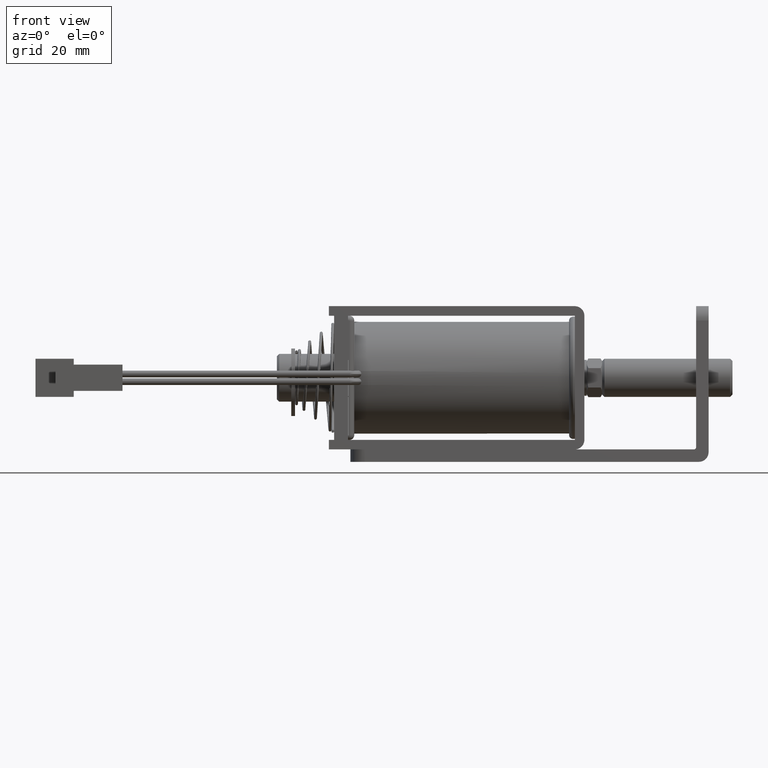
[diagram: clean part render]
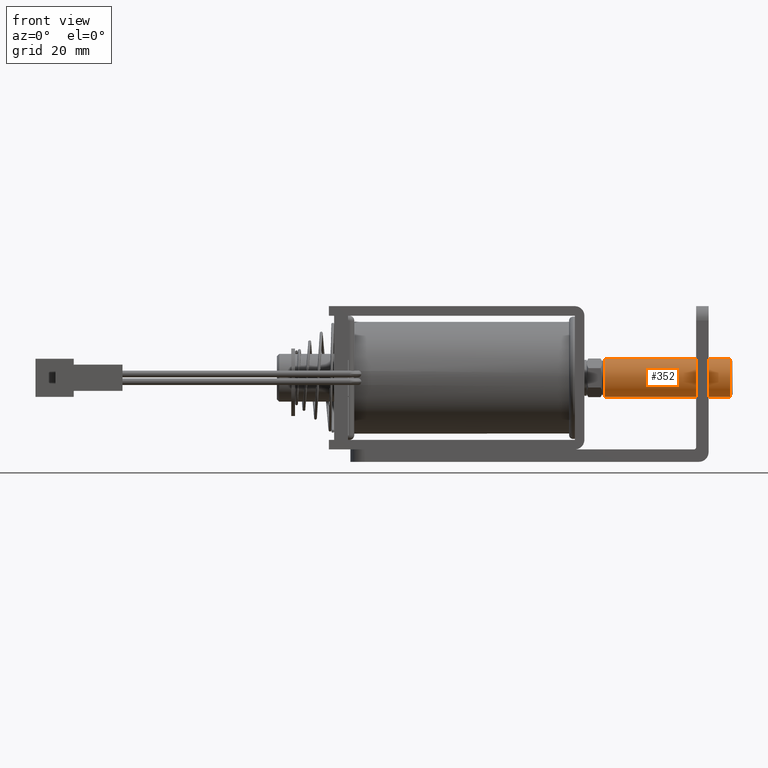
[diagram: same view with one face highlighted and labeled with its STEP entity id]
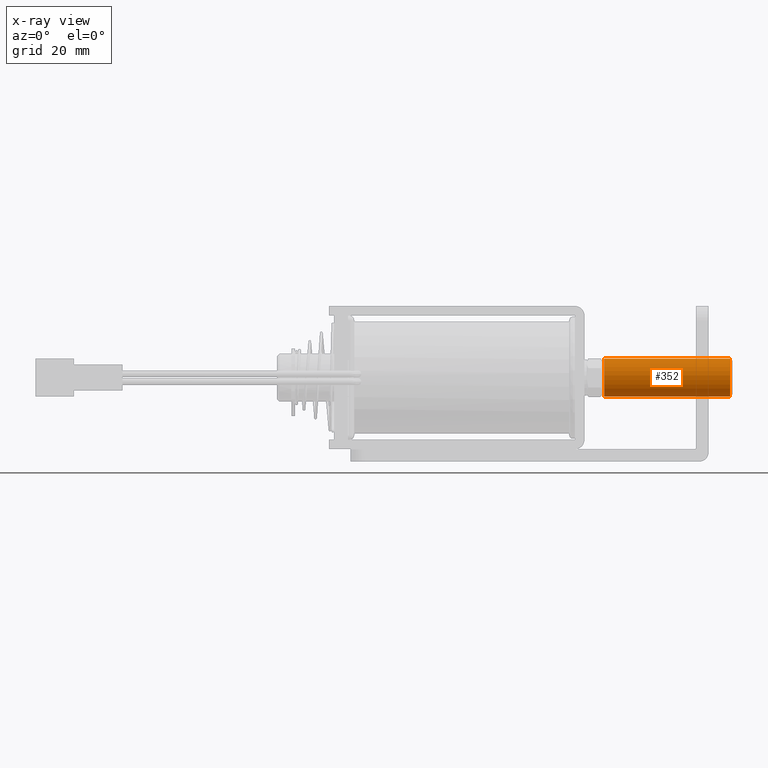
[diagram: x-ray of the same camera — body ghosted, the highlighted face saturated]
A machine part, front view. The second image highlights one B-rep face of the part: STEP entity #352.
The next image is the same camera in x-ray: the body ghosted, the highlighted face saturated — about 0% of this face is hidden behind the body in this view.
In plain terms, the highlighted cylindrical surface (edge-blend (fillet) strip) has radius 4 mm, axis along (1, -0, -0).
Its self-contained STEP definition (entity closure, byte-faithful):
#352=ADVANCED_FACE('',(#3549),#3548,.T.);
#3548=CYLINDRICAL_SURFACE('',#6264,4.00000000000E+000);
#3549=FACE_OUTER_BOUND('',#6265,.T.);
#6261=CARTESIAN_POINT('',(9.77700000000E+002,0.00000000000E+000,0.00000000000E+000));
#6262=DIRECTION('',(1.00000000000E+000,-0.00000000000E+000,-0.00000000000E+000));
#6263=DIRECTION('',(0.00000000000E+000,1.22464679915E-016,1.00000000000E+000));
#6264=AXIS2_PLACEMENT_3D('',#6261,#6262,#6263);
#6265=EDGE_LOOP('',(#8587,#8588,#8589,#8590));
#8587=ORIENTED_EDGE('',*,*,#9623,.T.);
#8588=ORIENTED_EDGE('',*,*,#9624,.F.);
#8589=ORIENTED_EDGE('',*,*,#9625,.T.);
#8590=ORIENTED_EDGE('',*,*,#9626,.T.);
#9623=EDGE_CURVE('',#15475,#15476,#15477,.T.);
#9624=EDGE_CURVE('',#15483,#15476,#15484,.T.);
#9625=EDGE_CURVE('',#15483,#15490,#15491,.T.);
#9626=EDGE_CURVE('',#15490,#15475,#15497,.T.);
#15475=VERTEX_POINT('',#19352);
#15476=VERTEX_POINT('',#19353);
#15477=CIRCLE('',#19357,4.00000000000E+000);
#15483=VERTEX_POINT('',#19358);
#15484=(BOUNDED_CURVE() B_SPLINE_CURVE(1,(#19359,#19360),.UNSPECIFIED.,.F.,.F.) B_SPLINE_CURVE_WITH_KNOTS((2,2),(8.33333328360E-002,9.16666665505E-001),.UNSPECIFIED.) CURVE() GEOMETRIC_REPRESENTATION_ITEM() RATIONAL_B_SPLINE_CURVE((1.00000000000E+000,1.00000000000E+000)) REPRESENTATION_ITEM('') );
#15490=VERTEX_POINT('',#19361);
#15491=CIRCLE('',#19365,4.00000000000E+000);
#15497=(BOUNDED_CURVE() B_SPLINE_CURVE(1,(#19366,#19367),.UNSPECIFIED.,.F.,.F.) B_SPLINE_CURVE_WITH_KNOTS((2,2),(8.33333333333E-002,9.16666666667E-001),.UNSPECIFIED.) CURVE() GEOMETRIC_REPRESENTATION_ITEM() RATIONAL_B_SPLINE_CURVE((7.50000000000E-001,7.50000000000E-001)) REPRESENTATION_ITEM('') );
#19352=CARTESIAN_POINT('',(4.50000000000E+000,0.00000000000E+000,-4.00000000000E+000));
#19353=CARTESIAN_POINT('',(4.50000000000E+000,7.40148683083E-016,4.00000000000E+000));
#19354=CARTESIAN_POINT('',(4.50000000000E+000,0.00000000000E+000,0.00000000000E+000));
#19355=DIRECTION('',(-1.00000000000E+000,-0.00000000000E+000,0.00000000000E+000));
#19356=DIRECTION('',(0.00000000000E+000,-1.22460635382E-016,-1.00000000000E+000));
#19357=AXIS2_PLACEMENT_3D('',#19354,#19355,#19356);
#19358=CARTESIAN_POINT('',(-2.18000000000E+001,4.44089209850E-016,4.00000000000E+000));
#19359=CARTESIAN_POINT('',(-2.18000000157E+001,4.89858719659E-016,4.00000000000E+000));
#19360=CARTESIAN_POINT('',(4.49999996333E+000,4.89858719659E-016,4.00000000000E+000));
#19361=CARTESIAN_POINT('',(-2.18000000000E+001,0.00000000000E+000,-4.00000000000E+000));
#19362=CARTESIAN_POINT('',(-2.18000000000E+001,0.00000000000E+000,0.00000000000E+000));
#19363=DIRECTION('',(1.00000000000E+000,0.00000000000E+000,0.00000000000E+000));
#19364=DIRECTION('',(0.00000000000E+000,-1.22460635382E-016,-1.00000000000E+000));
#19365=AXIS2_PLACEMENT_3D('',#19362,#19363,#19364);
#19366=CARTESIAN_POINT('',(-2.18000000000E+001,-4.44089209850E-016,-4.00000000000E+000));
#19367=CARTESIAN_POINT('',(4.50000000000E+000,-4.44089209850E-016,-4.00000000000E+000));